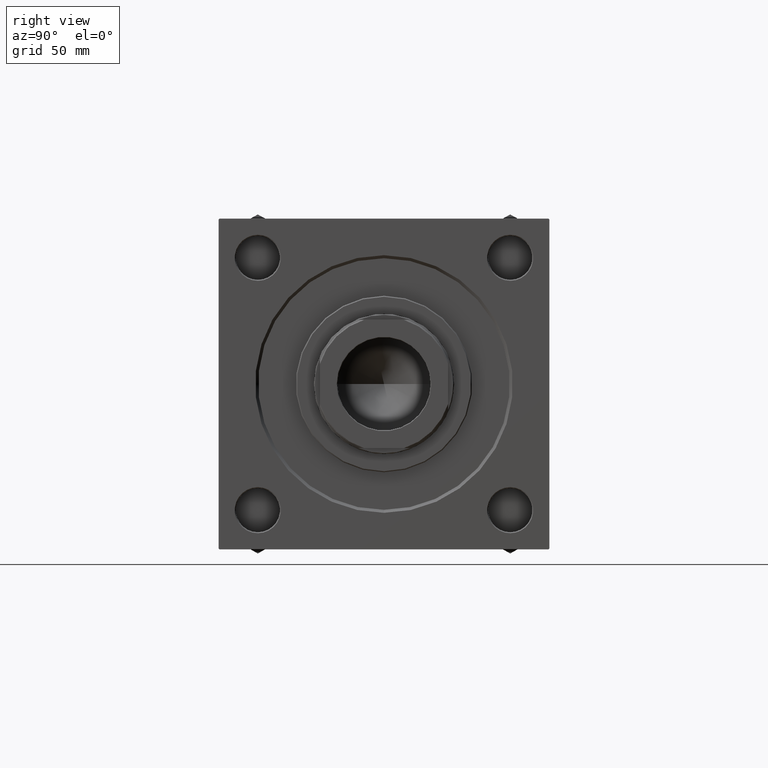
[diagram: clean part render]
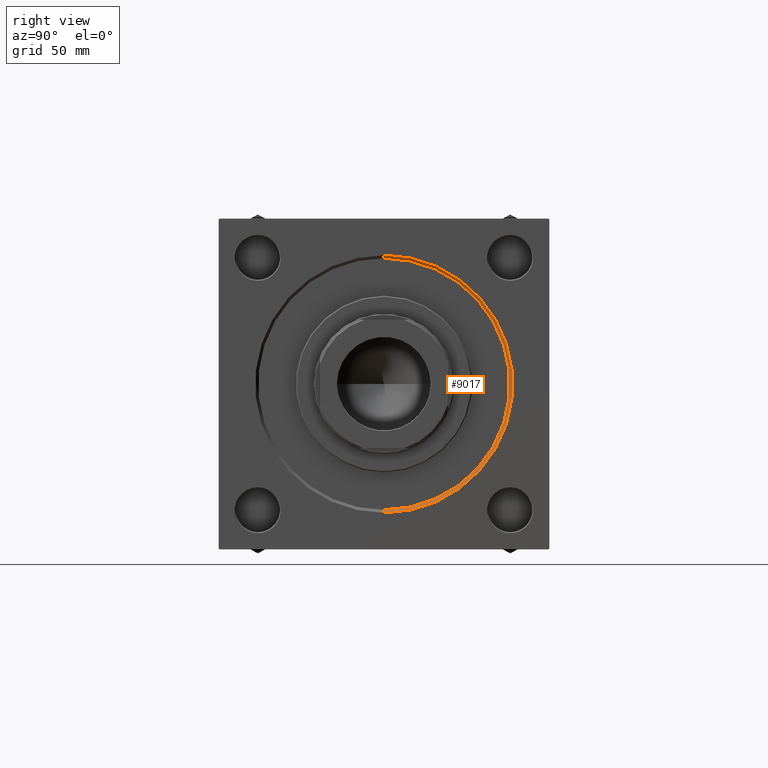
[diagram: same view with one face highlighted and labeled with its STEP entity id]
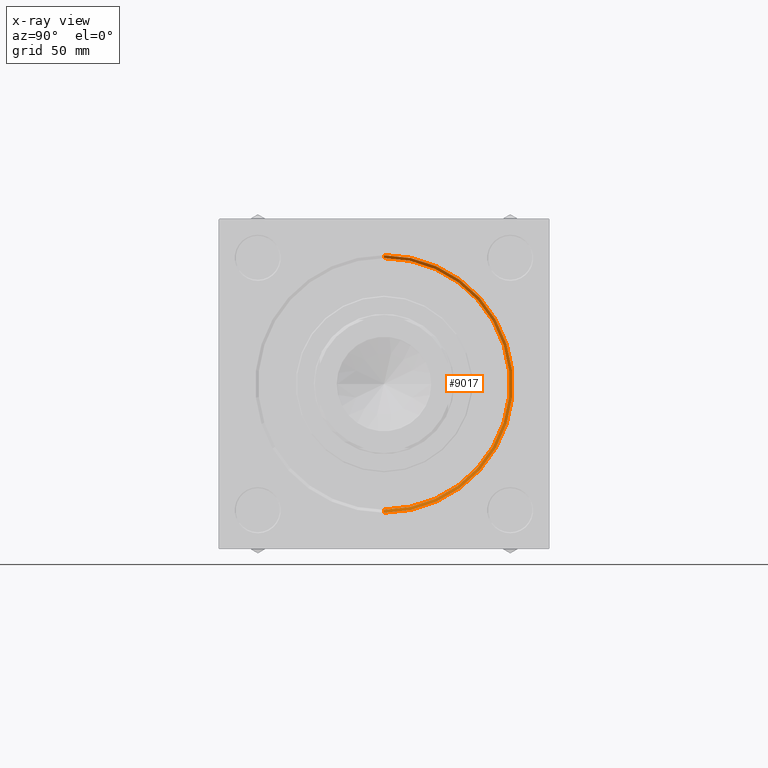
[diagram: x-ray of the same camera — body ghosted, the highlighted face saturated]
A machine part, right view. The second image highlights one B-rep face of the part: STEP entity #9017.
The next image is the same camera in x-ray: the body ghosted, the highlighted face saturated — about 0% of this face is hidden behind the body in this view.
In plain terms, the highlighted conical surface has half-angle 45 deg.
Its self-contained STEP definition (entity closure, byte-faithful):
#926 = DIRECTION ( 'NONE',  ( 1.000000000000000000, 0.000000000000000000, 0.000000000000000000 ) ) ;
#1065 = CARTESIAN_POINT ( 'NONE',  ( 217.0000000000000284, 7.868355684521741158E-15, 64.24999999999997158 ) ) ;
#1827 = VECTOR ( 'NONE', #35037, 1000.000000000000114 ) ;
#3873 = CIRCLE ( 'NONE', #48925, 62.75000000000000000 ) ;
#4582 = VERTEX_POINT ( 'NONE', #27769 ) ;
#5131 = AXIS2_PLACEMENT_3D ( 'NONE', #26062, #9886, #21440 ) ;
#9017 = ADVANCED_FACE ( 'NONE', ( #13736 ), #11703, .F. ) ;
#9558 = AXIS2_PLACEMENT_3D ( 'NONE', #21686, #48874, #38084 ) ;
#9886 = DIRECTION ( 'NONE',  ( 1.000000000000000000, 0.000000000000000000, 0.000000000000000000 ) ) ;
#10744 = VERTEX_POINT ( 'NONE', #1065 ) ;
#11579 = EDGE_CURVE ( 'NONE', #45588, #10744, #34775, .T. ) ;
#11670 = DIRECTION ( 'NONE',  ( 0.7071067811865540120, 0.000000000000000000, -0.7071067811865410224 ) ) ;
#11703 = CONICAL_SURFACE ( 'NONE', #5131, 62.75000000000000000, 0.7853981633974391752 ) ;
#12501 = ORIENTED_EDGE ( 'NONE', *, *, #23098, .T. ) ;
#13736 = FACE_OUTER_BOUND ( 'NONE', #14805, .T. ) ;
#14256 = CARTESIAN_POINT ( 'NONE',  ( 215.5000000000000284, 7.684658664649641591E-15, 62.75000000000000000 ) ) ;
#14805 = EDGE_LOOP ( 'NONE', ( #30380, #42460, #12501, #45908 ) ) ;
#15289 = CARTESIAN_POINT ( 'NONE',  ( 215.5000000000000284, 7.684658664649641591E-15, 62.75000000000000000 ) ) ;
#17008 = VECTOR ( 'NONE', #11670, 1000.000000000000114 ) ;
#20203 = DIRECTION ( 'NONE',  ( 0.000000000000000000, 0.000000000000000000, 1.000000000000000000 ) ) ;
#21440 = DIRECTION ( 'NONE',  ( 0.000000000000000000, 0.000000000000000000, -1.000000000000000000 ) ) ;
#21686 = CARTESIAN_POINT ( 'NONE',  ( 217.0000000000000284, 0.000000000000000000, 0.000000000000000000 ) ) ;
#22937 = EDGE_CURVE ( 'NONE', #4582, #45588, #3873, .T. ) ;
#23098 = EDGE_CURVE ( 'NONE', #4582, #24083, #35264, .T. ) ;
#24083 = VERTEX_POINT ( 'NONE', #40409 ) ;
#26003 = EDGE_CURVE ( 'NONE', #10744, #24083, #31680, .T. ) ;
#26062 = CARTESIAN_POINT ( 'NONE',  ( 215.5000000000000284, 0.000000000000000000, 0.000000000000000000 ) ) ;
#27769 = CARTESIAN_POINT ( 'NONE',  ( 215.5000000000000284, 0.000000000000000000, -62.75000000000000000 ) ) ;
#30380 = ORIENTED_EDGE ( 'NONE', *, *, #11579, .F. ) ;
#31680 = CIRCLE ( 'NONE', #9558, 64.24999999999997158 ) ;
#33001 = CARTESIAN_POINT ( 'NONE',  ( 215.5000000000000284, 0.000000000000000000, 0.000000000000000000 ) ) ;
#34775 = LINE ( 'NONE', #15289, #1827 ) ;
#35037 = DIRECTION ( 'NONE',  ( 0.7071067811865540120, 8.659560562354852739E-17, 0.7071067811865410224 ) ) ;
#35264 = LINE ( 'NONE', #50658, #17008 ) ;
#38084 = DIRECTION ( 'NONE',  ( 0.000000000000000000, 0.000000000000000000, 1.000000000000000000 ) ) ;
#40409 = CARTESIAN_POINT ( 'NONE',  ( 217.0000000000000284, 0.000000000000000000, -64.24999999999997158 ) ) ;
#42460 = ORIENTED_EDGE ( 'NONE', *, *, #22937, .F. ) ;
#45588 = VERTEX_POINT ( 'NONE', #14256 ) ;
#45908 = ORIENTED_EDGE ( 'NONE', *, *, #26003, .F. ) ;
#48874 = DIRECTION ( 'NONE',  ( -1.000000000000000000, -0.000000000000000000, 0.000000000000000000 ) ) ;
#48925 = AXIS2_PLACEMENT_3D ( 'NONE', #33001, #926, #20203 ) ;
#50658 = CARTESIAN_POINT ( 'NONE',  ( 215.5000000000000284, 0.000000000000000000, -62.75000000000000000 ) ) ;